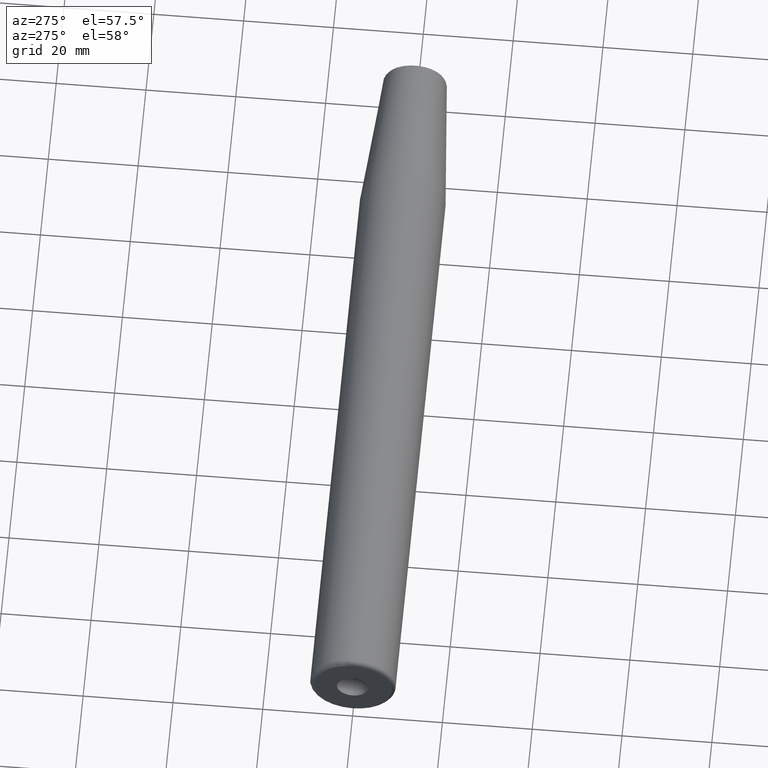
[diagram: clean part render]
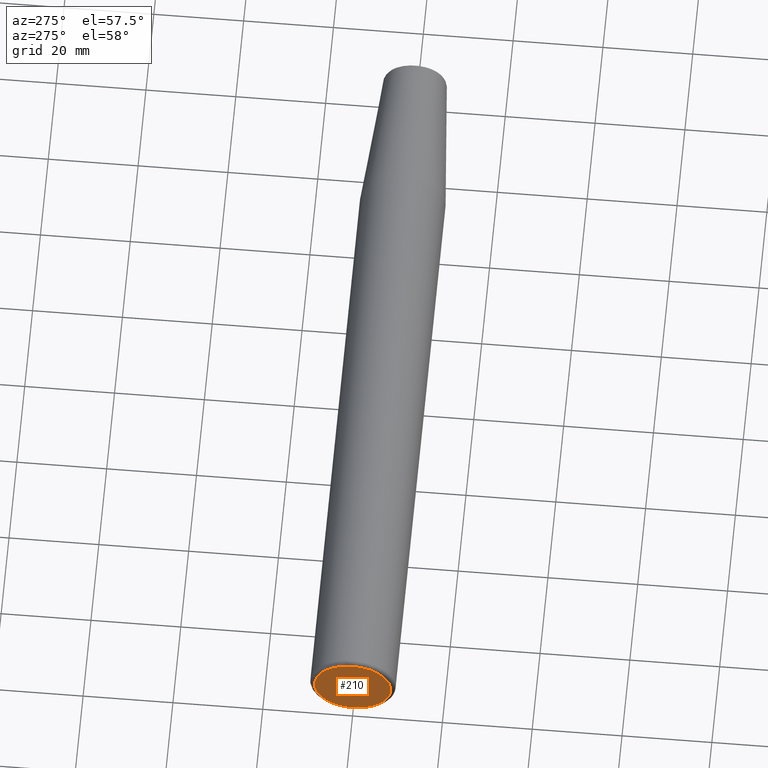
[diagram: same view with one face highlighted and labeled with its STEP entity id]
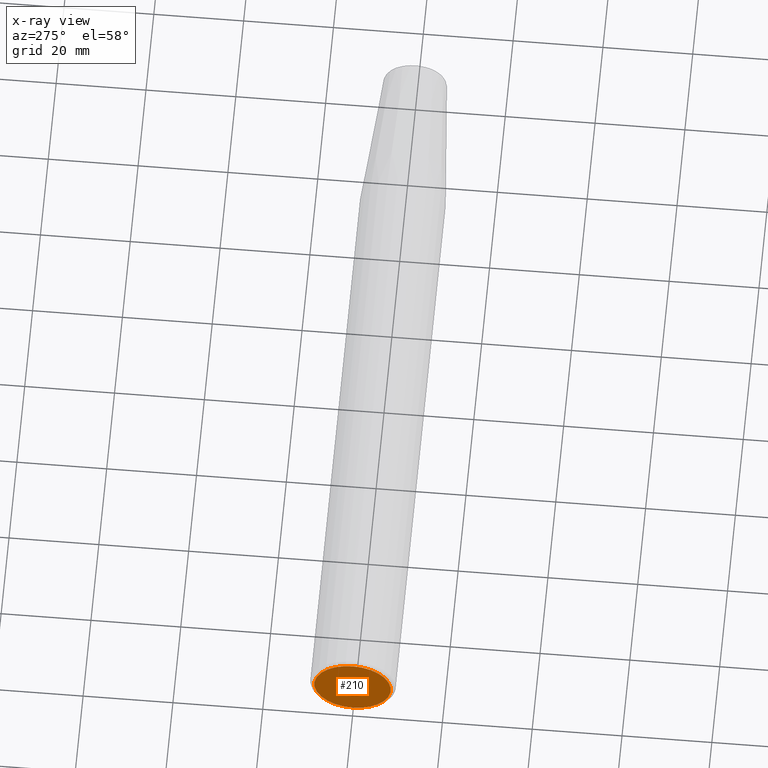
[diagram: x-ray of the same camera — body ghosted, the highlighted face saturated]
A machine part, auxiliary view. The second image highlights one B-rep face of the part: STEP entity #210.
The next image is the same camera in x-ray: the body ghosted, the highlighted face saturated — about 0% of this face is hidden behind the body in this view.
In plain terms, the highlighted planar face has unit normal (-1, 0, 0).
Its self-contained STEP definition (entity closure, byte-faithful):
#37=FACE_BOUND('',#68,.T.);
#41=PLANE('',#263);
#52=FACE_OUTER_BOUND('',#67,.T.);
#67=EDGE_LOOP('',(#179));
#68=EDGE_LOOP('',(#180));
#86=CIRCLE('',#255,3.5);
#87=CIRCLE('',#257,8.52499999999999);
#106=VERTEX_POINT('',#382);
#107=VERTEX_POINT('',#386);
#128=EDGE_CURVE('',#106,#106,#86,.T.);
#130=EDGE_CURVE('',#107,#107,#87,.T.);
#179=ORIENTED_EDGE('',*,*,#130,.F.);
#180=ORIENTED_EDGE('',*,*,#128,.T.);
#210=ADVANCED_FACE('',(#52,#37),#41,.T.);
#255=AXIS2_PLACEMENT_3D('',#383,#311,#312);
#257=AXIS2_PLACEMENT_3D('',#387,#316,#317);
#263=AXIS2_PLACEMENT_3D('',#397,#329,#330);
#311=DIRECTION('center_axis',(1.,0.,0.));
#312=DIRECTION('ref_axis',(0.,0.,1.));
#316=DIRECTION('center_axis',(1.,0.,0.));
#317=DIRECTION('ref_axis',(0.,-1.,-1.83697019872103E-16));
#329=DIRECTION('center_axis',(-1.,0.,0.));
#330=DIRECTION('ref_axis',(0.,0.,1.));
#382=CARTESIAN_POINT('',(-160.,-4.28626379701574E-16,-3.5));
#383=CARTESIAN_POINT('Origin',(-160.,0.,0.));
#386=CARTESIAN_POINT('',(-160.,-1.04401139627312E-15,-8.52499999999999));
#387=CARTESIAN_POINT('Origin',(-160.,0.,0.));
#397=CARTESIAN_POINT('Origin',(-160.,0.,0.));